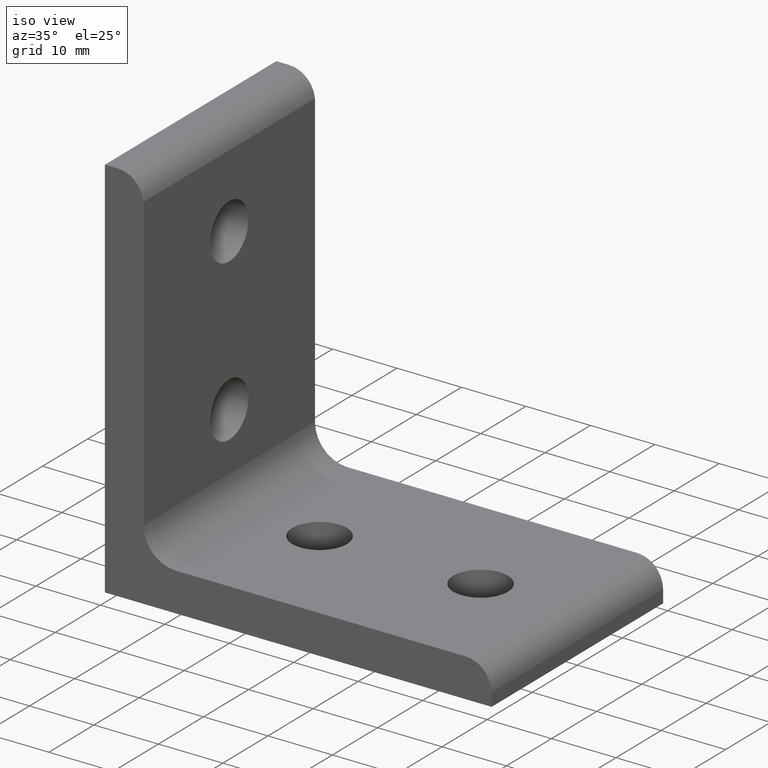
[diagram: clean part render]
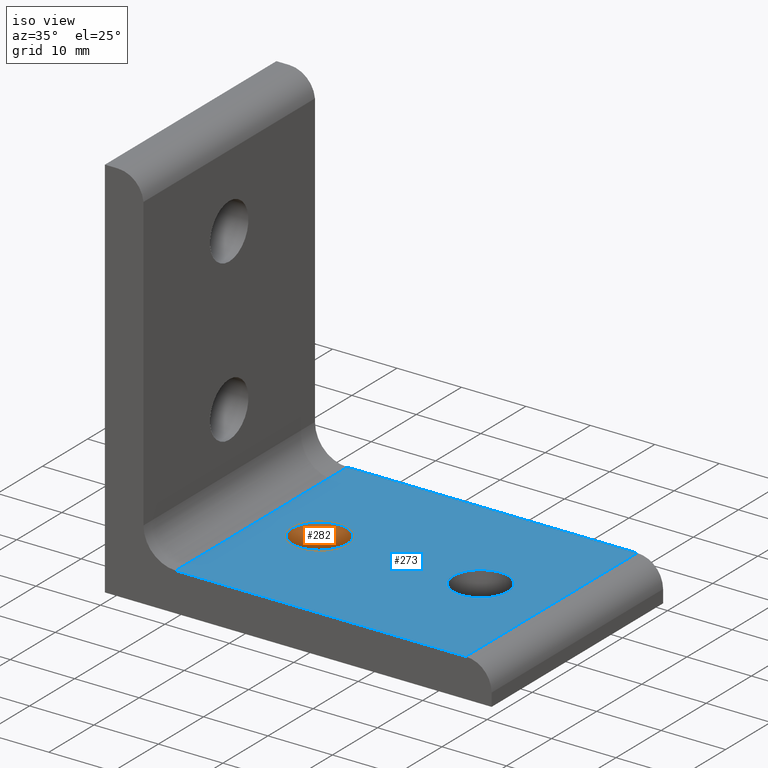
[diagram: same view with the hole feature highlighted: cylindrical wall and planar end face, labeled with their STEP entity ids]
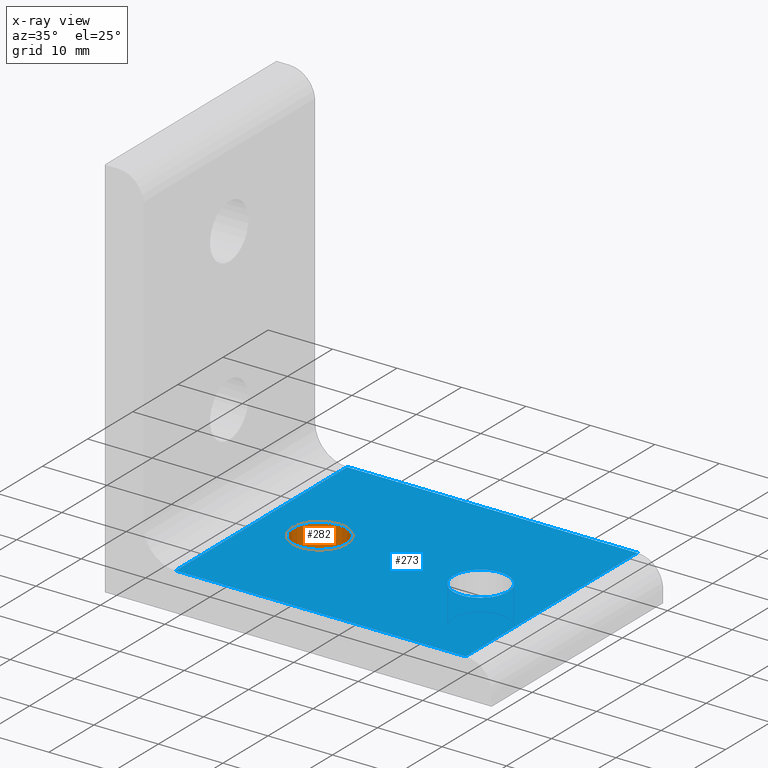
[diagram: x-ray of the same camera — body ghosted, the hole faces saturated]
A machine part, iso view. The highlighted faces form one hole feature of diameter 8.5 mm: the cylindrical wall (entity #282, orange) and its adjacent planar end face (entity #273, blue) — they share a circular edge in the B-rep.
The next image is the same camera in x-ray (body ghosted, the hole faces saturated) — the bore reads through the body.
Wall:
#23=FACE_BOUND('',#83,.T.);
#29=CIRCLE('',#293,4.24999905648292);
#39=CIRCLE('',#309,4.24999905648292);
#44=CYLINDRICAL_SURFACE('',#313,4.24999905648292);
#59=FACE_OUTER_BOUND('',#82,.T.);
#82=EDGE_LOOP('',(#255));
#83=EDGE_LOOP('',(#256));
#140=VERTEX_POINT('',#420);
#156=VERTEX_POINT('',#465);
#168=EDGE_CURVE('',#140,#140,#29,.T.);
#191=EDGE_CURVE('',#156,#156,#39,.T.);
#255=ORIENTED_EDGE('',*,*,#191,.F.);
#256=ORIENTED_EDGE('',*,*,#168,.T.);
#282=ADVANCED_FACE('',(#59,#23),#44,.F.);
#293=AXIS2_PLACEMENT_3D('',#421,#337,#338);
#309=AXIS2_PLACEMENT_3D('',#466,#382,#383);
#313=AXIS2_PLACEMENT_3D('',#471,#390,#391);
#337=DIRECTION('center_axis',(0.,0.,1.));
#338=DIRECTION('ref_axis',(-1.,0.,0.));
#382=DIRECTION('center_axis',(0.,0.,1.));
#383=DIRECTION('ref_axis',(-1.,0.,0.));
#390=DIRECTION('center_axis',(0.,0.,1.));
#391=DIRECTION('ref_axis',(-1.,0.,0.));
#420=CARTESIAN_POINT('',(24.2499946164085,-4.218075901E-6,5.99998095754595));
#421=CARTESIAN_POINT('Origin',(19.9999955599255,-4.218075901E-6,5.999980957546));
#465=CARTESIAN_POINT('',(24.2499946164085,-4.218075901E-6,-4.321089E-14));
#466=CARTESIAN_POINT('Origin',(19.9999955599255,-4.218075901E-6,-2.75236E-16));
#471=CARTESIAN_POINT('Origin',(19.9999955599255,-4.218075901E-6,5.999980957546));
End face:
#15=FACE_BOUND('',#66,.T.);
#16=FACE_BOUND('',#67,.T.);
#29=CIRCLE('',#293,4.24999905648292);
#30=CIRCLE('',#294,4.24999905648292);
#50=FACE_OUTER_BOUND('',#65,.T.);
#65=EDGE_LOOP('',(#201,#202,#203,#204));
#66=EDGE_LOOP('',(#205));
#67=EDGE_LOOP('',(#206));
#94=LINE('',#412,#115);
#95=LINE('',#416,#116);
#96=LINE('',#418,#117);
#97=LINE('',#419,#118);
#115=VECTOR('',#329,38.);
#116=VECTOR('',#334,45.0133032110452);
#117=VECTOR('',#335,38.);
#118=VECTOR('',#336,45.0133032110452);
#136=VERTEX_POINT('',#409);
#137=VERTEX_POINT('',#411);
#138=VERTEX_POINT('',#415);
#139=VERTEX_POINT('',#417);
#140=VERTEX_POINT('',#420);
#141=VERTEX_POINT('',#422);
#163=EDGE_CURVE('',#136,#137,#94,.T.);
#165=EDGE_CURVE('',#136,#138,#95,.T.);
#166=EDGE_CURVE('',#138,#139,#96,.T.);
#167=EDGE_CURVE('',#137,#139,#97,.T.);
#168=EDGE_CURVE('',#140,#140,#29,.T.);
#169=EDGE_CURVE('',#141,#141,#30,.T.);
#201=ORIENTED_EDGE('',*,*,#165,.T.);
#202=ORIENTED_EDGE('',*,*,#166,.T.);
#203=ORIENTED_EDGE('',*,*,#167,.F.);
#204=ORIENTED_EDGE('',*,*,#163,.F.);
#205=ORIENTED_EDGE('',*,*,#168,.F.);
#206=ORIENTED_EDGE('',*,*,#169,.F.);
#264=PLANE('',#292);
#273=ADVANCED_FACE('',(#50,#15,#16),#264,.T.);
#292=AXIS2_PLACEMENT_3D('',#414,#332,#333);
#293=AXIS2_PLACEMENT_3D('',#421,#337,#338);
#294=AXIS2_PLACEMENT_3D('',#423,#339,#340);
#329=DIRECTION('',(0.,-1.,0.));
#332=DIRECTION('center_axis',(0.,0.,1.));
#333=DIRECTION('ref_axis',(1.,0.,0.));
#334=DIRECTION('',(-1.,0.,0.));
#335=DIRECTION('',(0.,-1.,0.));
#336=DIRECTION('',(-1.,0.,0.));
#337=DIRECTION('center_axis',(0.,0.,1.));
#338=DIRECTION('ref_axis',(-1.,0.,0.));
#339=DIRECTION('center_axis',(0.,0.,1.));
#340=DIRECTION('ref_axis',(-1.,0.,0.));
#409=CARTESIAN_POINT('',(55.9999891421744,19.,5.99998095754563));
#411=CARTESIAN_POINT('',(55.9999891421744,-19.,5.99998095754563));
#412=CARTESIAN_POINT('',(55.9999891421744,19.,5.99998095754563));
#414=CARTESIAN_POINT('Origin',(55.9999891421744,19.,5.99998095754563));
#415=CARTESIAN_POINT('',(10.9866859311292,19.,5.99998095754563));
#416=CARTESIAN_POINT('',(55.9999891421744,19.,5.99998095754563));
#417=CARTESIAN_POINT('',(10.9866859311292,-19.,5.99998095754563));
#418=CARTESIAN_POINT('',(10.9866859311292,19.,5.99998095754563));
#419=CARTESIAN_POINT('',(55.9999891421744,-19.,5.99998095754563));
#420=CARTESIAN_POINT('',(24.2499946164085,-4.218075901E-6,5.99998095754595));
#421=CARTESIAN_POINT('Origin',(19.9999955599255,-4.218075901E-6,5.999980957546));
#422=CARTESIAN_POINT('',(49.2499890663084,-4.218075901E-6,5.9999809575457));
#423=CARTESIAN_POINT('Origin',(44.9999900098255,-4.218075901E-6,5.99998095754574));